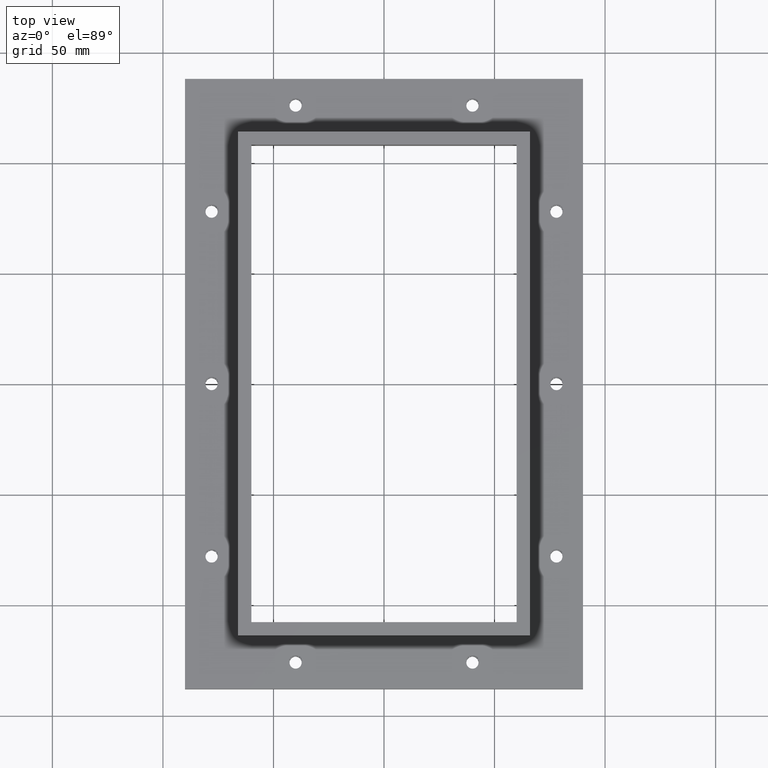
[diagram: clean part render]
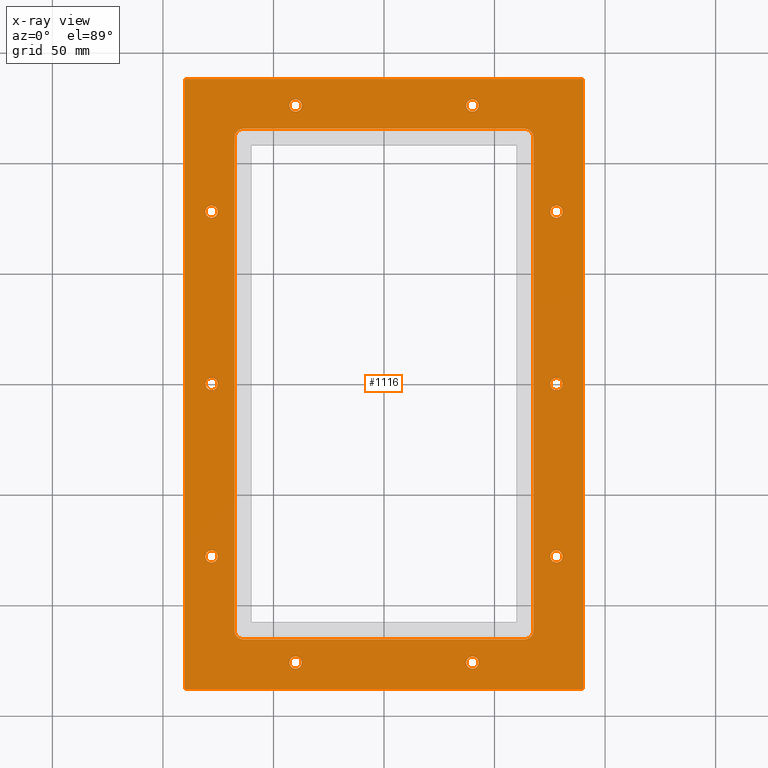
[diagram: x-ray — body ghosted, one internal face saturated and labeled with its STEP entity id]
A machine part, top view, then the same camera in x-ray: the body is ghosted and one INTERNAL B-rep face — a face not visible from any outside direction — is saturated and labeled: STEP entity #1116.
In plain terms, the highlighted planar face has unit normal (0, -0, -1).
Its self-contained STEP definition (entity closure, byte-faithful):
#76=FACE_BOUND('',#260,.T.);
#77=FACE_BOUND('',#261,.T.);
#78=FACE_BOUND('',#262,.T.);
#79=FACE_BOUND('',#263,.T.);
#80=FACE_BOUND('',#264,.T.);
#81=FACE_BOUND('',#265,.T.);
#82=FACE_BOUND('',#266,.T.);
#83=FACE_BOUND('',#267,.T.);
#84=FACE_BOUND('',#268,.T.);
#85=FACE_BOUND('',#269,.T.);
#86=FACE_BOUND('',#270,.T.);
#116=PLANE('',#1239);
#170=FACE_OUTER_BOUND('',#259,.T.);
#259=EDGE_LOOP('',(#1017,#1018,#1019,#1020));
#260=EDGE_LOOP('',(#1021));
#261=EDGE_LOOP('',(#1022));
#262=EDGE_LOOP('',(#1023));
#263=EDGE_LOOP('',(#1024));
#264=EDGE_LOOP('',(#1025));
#265=EDGE_LOOP('',(#1026));
#266=EDGE_LOOP('',(#1027));
#267=EDGE_LOOP('',(#1028));
#268=EDGE_LOOP('',(#1029));
#269=EDGE_LOOP('',(#1030));
#270=EDGE_LOOP('',(#1031,#1032,#1033,#1034,#1035,#1036,#1037,#1038));
#341=LINE('',#1774,#437);
#345=LINE('',#1786,#441);
#349=LINE('',#1798,#445);
#353=LINE('',#1809,#449);
#355=LINE('',#1814,#451);
#359=LINE('',#1822,#455);
#362=LINE('',#1828,#458);
#365=LINE('',#1833,#461);
#437=VECTOR('',#1480,10.);
#441=VECTOR('',#1492,10.);
#445=VECTOR('',#1504,10.);
#449=VECTOR('',#1516,10.);
#451=VECTOR('',#1520,10.);
#455=VECTOR('',#1526,10.);
#458=VECTOR('',#1531,10.);
#461=VECTOR('',#1536,10.);
#483=CIRCLE('',#1189,2.75);
#485=CIRCLE('',#1192,2.75);
#487=CIRCLE('',#1195,2.75);
#489=CIRCLE('',#1198,2.75);
#491=CIRCLE('',#1201,2.75);
#493=CIRCLE('',#1204,2.75);
#495=CIRCLE('',#1207,2.75);
#497=CIRCLE('',#1210,2.75);
#499=CIRCLE('',#1213,2.75);
#501=CIRCLE('',#1216,2.75);
#503=CIRCLE('',#1219,3.99999999999997);
#505=CIRCLE('',#1223,3.99999999999995);
#507=CIRCLE('',#1227,4.00000000000002);
#509=CIRCLE('',#1231,4.);
#563=VERTEX_POINT('',#1704);
#565=VERTEX_POINT('',#1710);
#567=VERTEX_POINT('',#1716);
#569=VERTEX_POINT('',#1722);
#571=VERTEX_POINT('',#1728);
#573=VERTEX_POINT('',#1734);
#575=VERTEX_POINT('',#1740);
#577=VERTEX_POINT('',#1746);
#579=VERTEX_POINT('',#1752);
#581=VERTEX_POINT('',#1758);
#583=VERTEX_POINT('',#1764);
#584=VERTEX_POINT('',#1765);
#587=VERTEX_POINT('',#1773);
#589=VERTEX_POINT('',#1779);
#591=VERTEX_POINT('',#1785);
#593=VERTEX_POINT('',#1791);
#595=VERTEX_POINT('',#1797);
#597=VERTEX_POINT('',#1803);
#599=VERTEX_POINT('',#1812);
#600=VERTEX_POINT('',#1813);
#603=VERTEX_POINT('',#1821);
#605=VERTEX_POINT('',#1827);
#685=EDGE_CURVE('',#563,#563,#483,.T.);
#688=EDGE_CURVE('',#565,#565,#485,.T.);
#691=EDGE_CURVE('',#567,#567,#487,.T.);
#694=EDGE_CURVE('',#569,#569,#489,.T.);
#697=EDGE_CURVE('',#571,#571,#491,.T.);
#700=EDGE_CURVE('',#573,#573,#493,.T.);
#703=EDGE_CURVE('',#575,#575,#495,.T.);
#706=EDGE_CURVE('',#577,#577,#497,.T.);
#709=EDGE_CURVE('',#579,#579,#499,.T.);
#712=EDGE_CURVE('',#581,#581,#501,.T.);
#715=EDGE_CURVE('',#583,#584,#503,.T.);
#719=EDGE_CURVE('',#587,#583,#341,.T.);
#722=EDGE_CURVE('',#589,#587,#505,.T.);
#725=EDGE_CURVE('',#591,#589,#345,.T.);
#728=EDGE_CURVE('',#593,#591,#507,.T.);
#731=EDGE_CURVE('',#595,#593,#349,.T.);
#734=EDGE_CURVE('',#597,#595,#509,.T.);
#737=EDGE_CURVE('',#584,#597,#353,.T.);
#739=EDGE_CURVE('',#599,#600,#355,.T.);
#743=EDGE_CURVE('',#603,#599,#359,.T.);
#746=EDGE_CURVE('',#605,#603,#362,.T.);
#749=EDGE_CURVE('',#600,#605,#365,.T.);
#1017=ORIENTED_EDGE('',*,*,#749,.F.);
#1018=ORIENTED_EDGE('',*,*,#739,.F.);
#1019=ORIENTED_EDGE('',*,*,#743,.F.);
#1020=ORIENTED_EDGE('',*,*,#746,.F.);
#1021=ORIENTED_EDGE('',*,*,#685,.T.);
#1022=ORIENTED_EDGE('',*,*,#688,.T.);
#1023=ORIENTED_EDGE('',*,*,#691,.T.);
#1024=ORIENTED_EDGE('',*,*,#694,.T.);
#1025=ORIENTED_EDGE('',*,*,#697,.T.);
#1026=ORIENTED_EDGE('',*,*,#700,.T.);
#1027=ORIENTED_EDGE('',*,*,#703,.T.);
#1028=ORIENTED_EDGE('',*,*,#706,.T.);
#1029=ORIENTED_EDGE('',*,*,#709,.T.);
#1030=ORIENTED_EDGE('',*,*,#712,.T.);
#1031=ORIENTED_EDGE('',*,*,#737,.F.);
#1032=ORIENTED_EDGE('',*,*,#715,.F.);
#1033=ORIENTED_EDGE('',*,*,#719,.F.);
#1034=ORIENTED_EDGE('',*,*,#722,.F.);
#1035=ORIENTED_EDGE('',*,*,#725,.F.);
#1036=ORIENTED_EDGE('',*,*,#728,.F.);
#1037=ORIENTED_EDGE('',*,*,#731,.F.);
#1038=ORIENTED_EDGE('',*,*,#734,.F.);
#1116=ADVANCED_FACE('',(#170,#76,#77,#78,#79,#80,#81,#82,#83,#84,#85,#86),
#116,.F.);
#1189=AXIS2_PLACEMENT_3D('',#1705,#1402,#1403);
#1192=AXIS2_PLACEMENT_3D('',#1711,#1409,#1410);
#1195=AXIS2_PLACEMENT_3D('',#1717,#1416,#1417);
#1198=AXIS2_PLACEMENT_3D('',#1723,#1423,#1424);
#1201=AXIS2_PLACEMENT_3D('',#1729,#1430,#1431);
#1204=AXIS2_PLACEMENT_3D('',#1735,#1437,#1438);
#1207=AXIS2_PLACEMENT_3D('',#1741,#1444,#1445);
#1210=AXIS2_PLACEMENT_3D('',#1747,#1451,#1452);
#1213=AXIS2_PLACEMENT_3D('',#1753,#1458,#1459);
#1216=AXIS2_PLACEMENT_3D('',#1759,#1465,#1466);
#1219=AXIS2_PLACEMENT_3D('',#1766,#1472,#1473);
#1223=AXIS2_PLACEMENT_3D('',#1780,#1485,#1486);
#1227=AXIS2_PLACEMENT_3D('',#1792,#1497,#1498);
#1231=AXIS2_PLACEMENT_3D('',#1804,#1509,#1510);
#1239=AXIS2_PLACEMENT_3D('',#1836,#1540,#1541);
#1402=DIRECTION('center_axis',(0.,-1.38777878078145E-16,-1.));
#1403=DIRECTION('ref_axis',(-1.,1.97372982155583E-16,-2.73910036535074E-32));
#1409=DIRECTION('center_axis',(0.,-1.38777878078145E-16,-1.));
#1410=DIRECTION('ref_axis',(-1.,1.97372982155583E-16,-2.73910036535074E-32));
#1416=DIRECTION('center_axis',(0.,-1.38777878078145E-16,-1.));
#1417=DIRECTION('ref_axis',(-1.,1.97372982155583E-16,-2.73910036535074E-32));
#1423=DIRECTION('center_axis',(0.,-1.38777878078145E-16,-1.));
#1424=DIRECTION('ref_axis',(1.,1.97372982155583E-16,-2.73910036535074E-32));
#1430=DIRECTION('center_axis',(0.,-1.38777878078145E-16,-1.));
#1431=DIRECTION('ref_axis',(1.,1.97372982155583E-16,-2.73910036535074E-32));
#1437=DIRECTION('center_axis',(0.,-1.38777878078145E-16,-1.));
#1438=DIRECTION('ref_axis',(1.,1.97372982155583E-16,-2.73910036535074E-32));
#1444=DIRECTION('center_axis',(0.,-1.38777878078145E-16,-1.));
#1445=DIRECTION('ref_axis',(1.,1.97372982155583E-16,-2.73910036535074E-32));
#1451=DIRECTION('center_axis',(0.,-1.38777878078145E-16,-1.));
#1452=DIRECTION('ref_axis',(1.,1.97372982155583E-16,-2.73910036535074E-32));
#1458=DIRECTION('center_axis',(0.,-1.38777878078145E-16,-1.));
#1459=DIRECTION('ref_axis',(1.,1.97372982155583E-16,-2.73910036535074E-32));
#1465=DIRECTION('center_axis',(0.,-1.38777878078145E-16,-1.));
#1466=DIRECTION('ref_axis',(1.,1.97372982155583E-16,-2.73910036535074E-32));
#1472=DIRECTION('center_axis',(0.,1.38777878078145E-16,1.));
#1473=DIRECTION('ref_axis',(-1.,-1.97372982155583E-16,2.73910036535074E-32));
#1480=DIRECTION('',(1.,1.97372982155584E-16,-2.73910036535074E-32));
#1485=DIRECTION('center_axis',(0.,1.38777878078145E-16,1.));
#1486=DIRECTION('ref_axis',(-1.97372982155584E-16,1.,-1.38777878078145E-16));
#1492=DIRECTION('',(2.58709070332184E-15,-1.,1.38777878078145E-16));
#1497=DIRECTION('center_axis',(0.,1.38777878078145E-16,1.));
#1498=DIRECTION('ref_axis',(1.,5.74848810528136E-15,-7.97762981408401E-31));
#1504=DIRECTION('',(-1.,-1.97372982155584E-16,2.73910036535074E-32));
#1509=DIRECTION('center_axis',(0.,1.38777878078145E-16,1.));
#1510=DIRECTION('ref_axis',(1.30759600678074E-15,-1.,1.38777878078145E-16));
#1516=DIRECTION('',(1.80998990362407E-16,1.,-1.38777878078145E-16));
#1520=DIRECTION('',(1.88791548148819E-16,1.,-1.38777878078145E-16));
#1526=DIRECTION('',(-1.,-4.38256058456118E-32,4.86561966779451E-48));
#1531=DIRECTION('',(-6.00700380473514E-17,-1.,1.38777878078145E-16));
#1536=DIRECTION('',(1.,1.97372982155584E-16,-2.73910036535074E-32));
#1540=DIRECTION('center_axis',(0.,-1.38777878078145E-16,-1.));
#1541=DIRECTION('ref_axis',(-1.,0.,0.));
#1704=CARTESIAN_POINT('',(80.75,78.,-3.00000000000004));
#1705=CARTESIAN_POINT('Origin',(78.,78.,-3.00000000000004));
#1710=CARTESIAN_POINT('',(80.75,-3.50818253763918E-14,-3.00000000000004));
#1711=CARTESIAN_POINT('Origin',(78.,-3.42022718056984E-14,-3.00000000000004));
#1716=CARTESIAN_POINT('',(80.75,-78.,-3.00000000000004));
#1717=CARTESIAN_POINT('Origin',(78.,-78.,-3.00000000000004));
#1722=CARTESIAN_POINT('',(-80.75,78.,-3.00000000000004));
#1723=CARTESIAN_POINT('Origin',(-78.,78.,-3.00000000000004));
#1728=CARTESIAN_POINT('',(-80.75,-3.50818253763918E-14,-3.00000000000004));
#1729=CARTESIAN_POINT('Origin',(-78.,-3.42022718056984E-14,-3.00000000000004));
#1734=CARTESIAN_POINT('',(37.25,-126.,-3.00000000000004));
#1735=CARTESIAN_POINT('Origin',(40.,-126.,-3.00000000000004));
#1740=CARTESIAN_POINT('',(37.25,126.,-3.00000000000004));
#1741=CARTESIAN_POINT('Origin',(40.,126.,-3.00000000000004));
#1746=CARTESIAN_POINT('',(-80.75,-78.,-3.00000000000004));
#1747=CARTESIAN_POINT('Origin',(-78.,-78.,-3.00000000000004));
#1752=CARTESIAN_POINT('',(-42.75,-126.,-3.00000000000004));
#1753=CARTESIAN_POINT('Origin',(-40.,-126.,-3.00000000000004));
#1758=CARTESIAN_POINT('',(-42.75,126.,-3.00000000000004));
#1759=CARTESIAN_POINT('Origin',(-40.,126.,-3.00000000000004));
#1764=CARTESIAN_POINT('',(63.4999999999999,-115.5,-3.));
#1765=CARTESIAN_POINT('',(67.4999999999999,-111.5,-3.));
#1766=CARTESIAN_POINT('Origin',(63.4999999999999,-111.5,-3.));
#1773=CARTESIAN_POINT('',(-63.4999999999995,-115.5,-3.));
#1774=CARTESIAN_POINT('',(-63.4999999999995,-115.5,-3.));
#1779=CARTESIAN_POINT('',(-67.4999999999995,-111.5,-3.));
#1780=CARTESIAN_POINT('Origin',(-63.4999999999995,-111.5,-3.));
#1785=CARTESIAN_POINT('',(-67.5000000000001,111.5,-3.00000000000003));
#1786=CARTESIAN_POINT('',(-67.5000000000001,111.5,-3.00000000000003));
#1791=CARTESIAN_POINT('',(-63.5,115.5,-3.00000000000003));
#1792=CARTESIAN_POINT('Origin',(-63.5,111.5,-3.00000000000003));
#1797=CARTESIAN_POINT('',(63.5,115.5,-3.00000000000003));
#1798=CARTESIAN_POINT('',(63.5,115.5,-3.00000000000003));
#1803=CARTESIAN_POINT('',(67.5,111.5,-3.00000000000003));
#1804=CARTESIAN_POINT('Origin',(63.5,111.5,-3.00000000000003));
#1809=CARTESIAN_POINT('',(67.4999999999999,-111.5,-3.));
#1812=CARTESIAN_POINT('',(-90.,-138.,-3.));
#1813=CARTESIAN_POINT('',(-89.9999999999999,138.,-3.00000000000003));
#1814=CARTESIAN_POINT('',(-90.,-138.,-3.));
#1821=CARTESIAN_POINT('',(89.9999999999999,-138.,-3.));
#1822=CARTESIAN_POINT('',(89.9999999999999,-138.,-3.));
#1827=CARTESIAN_POINT('',(89.9999999999999,138.,-3.00000000000003));
#1828=CARTESIAN_POINT('',(89.9999999999999,138.,-3.00000000000003));
#1833=CARTESIAN_POINT('',(-89.9999999999999,138.,-3.00000000000003));
#1836=CARTESIAN_POINT('Origin',(-1.77635683940025E-14,1.77635683940025E-14,
-3.00000000000002));